MODEL slx_7e0ab6ba1050
KIND model
CONFIG AbsTol = auto
CONFIG EnableMultiTasking = off
CONFIG FixedStep = auto
CONFIG MaxStep = 0.05
CONFIG MinStep = auto
CONFIG RelTol = 1e-6
CONFIG SampleTimeConstraint = Unconstrained
CONFIG Solver = VariableStepAuto
CONFIG SolverName = VariableStepAuto
CONFIG StartTime = 0.0
CONFIG StopTime = 30
BLOCK [Constant]  
  Value = 0
BLOCK [Constant]    
  Value = 0
BLOCK [Constant]     
  Value = initcond
BLOCK [Display] (rad and rad//s)
  Decimation = 1
  Ports = [1]
BLOCK [Demux] Demux
  Outputs = 2
  Ports = [1, 2]
BLOCK [Display] Display1
  Decimation = 1
  Ports = [1]
BLOCK [Display] Display2
  Decimation = 1
  Ports = [1]
BLOCK [Gain] Drive Motor Controller
  Gain = K
BLOCK [Gain] Gain
  Gain = 1.15
BLOCK [Gain] Gain1
  Gain = 0.0524
BLOCK [Gain] Gain2 
  Gain = 20
BLOCK [Gain] Gain3
  Gain = pi/180
BLOCK [Integrator] Integrator
  Ports = [1, 1]
BLOCK [Integrator] Integrator1
  InitialCondition = [initcond(2);initcond(4)]
  Ports = [1, 1]
BLOCK [Mux] Mux
  DisplayOption = bar
  Inputs = 2
  Ports = [2, 1]
BLOCK [TransferFcn] Pendulum Motor Controller
  Denominator = pendCden
  Numerator = pendCnum
BLOCK [Scope] PhDot (deg//s)
  Floating = off
  NumInputPorts = 1
  Ports = [1]
  ScopeSpecificationString = Simulink.scopes.TimeScopeBlockCfg('CurrentConfiguration', extmgr.ConfigurationSet(extmgr.Configuration('Core','General UI',true),extmgr.Configuration('Core','Source UI',true),extmgr.Configuration('Sources','WiredSimulink',true),extmgr.Configuration('Visuals','Time Domain',true,'SerializedDisplays',{struct('MinYLimReal','-480.14643','MaxYLimReal','336.45226','YLabelReal','','MinYLimMag',' 0.00000',...<+1395ch>
BLOCK [Scope] Phi (deg) Pendulum Angle
  Floating = off
  NumInputPorts = 1
  Ports = [1]
  ScopeSpecificationString = Simulink.scopes.TimeScopeBlockCfg('CurrentConfiguration', extmgr.ConfigurationSet(extmgr.Configuration('Core','General UI',true),extmgr.Configuration('Core','Source UI',true),extmgr.Configuration('Sources','WiredSimulink',true,'DataLoggingVariableName','ScopeData2'),extmgr.Configuration('Visuals','Time Domain',true,'SerializedDisplays',{struct('MinYLimReal','-3.23432','MaxYLimReal','0.46102','YLab...<+1449ch>
BLOCK [Scope] Phi (rad) Pendulum Angle
  Floating = off
  NumInputPorts = 2
  Ports = [2]
  ScopeSpecificationString = Simulink.scopes.TimeScopeBlockCfg('CurrentConfiguration', extmgr.ConfigurationSet(extmgr.Configuration('Core','General UI',true),extmgr.Configuration('Core','Source UI',true),extmgr.Configuration('Sources','WiredSimulink',true,'DataLoggingVariableName','ScopeData4'),extmgr.Configuration('Visuals','Time Domain',true,'SerializedDisplays',{struct('MinYLimReal','-0.66409','MaxYLimReal','5.47677','YLab...<+1811ch>
BLOCK [Constant] PhiRef
  Value = 0
BLOCK [Product] Product
  Ports = [2, 1]
BLOCK [Scope] Scope
  Floating = off
  NumInputPorts = 1
  Ports = [1]
  ScopeSpecificationString = Simulink.scopes.TimeScopeBlockCfg('CurrentConfiguration', extmgr.ConfigurationSet(extmgr.Configuration('Core','General UI',true),extmgr.Configuration('Core','Source UI',true),extmgr.Configuration('Sources','WiredSimulink',true,'DataLoggingVariableName','ScopeData3'),extmgr.Configuration('Visuals','Time Domain',true,'SerializedDisplays',{struct('MinYLimReal','-911.23585','MaxYLimReal','101.24843','...<+1381ch>
BLOCK [Constant] Size of ramp reference (deg//s)
  Value = ThDotRef
BLOCK [Constant] Size of step reference (deg)
  Value = ThRef
BLOCK [SignalGenerator] Square Wave
  Frequency = SqWaveFreq
  Ports = [0, 1]
  WaveForm = square
BLOCK [Sum] Sum
  Inputs = -+|
  Ports = [2, 1]
BLOCK [Sum] Sum1
  Inputs = |+-
  Ports = [2, 1]
BLOCK [Sum] Sum2
  Inputs = -|+|+
  Ports = [3, 1]
BLOCK [Switch] Switch
  Criteria = u2 ~= 0
  InputSameDT = off
  SaturateOnIntegerOverflow = off
BLOCK [Switch] Switch1
  Criteria = u2 ~= 0
  InputSameDT = off
  NameLocation = right
  SaturateOnIntegerOverflow = off
BLOCK [Switch] Switch2
  Criteria = u2 ~= 0
  InputSameDT = off
  SaturateOnIntegerOverflow = off
BLOCK [Switch] Switch3
  Criteria = u2 ~= 0
  InputSameDT = off
  SaturateOnIntegerOverflow = off
BLOCK [Scope] ThDot (deg//s)
  Floating = off
  NumInputPorts = 1
  Ports = [1]
  ScopeSpecificationString = Simulink.scopes.TimeScopeBlockCfg('CurrentConfiguration', extmgr.ConfigurationSet(extmgr.Configuration('Core','General UI',true),extmgr.Configuration('Core','Source UI',true),extmgr.Configuration('Sources','WiredSimulink',true,'DataLoggingVariableName','ScopeData3'),extmgr.Configuration('Visuals','Time Domain',true,'SerializedDisplays',{struct('MinYLimReal','-10.0022','MaxYLimReal','10.98211','YLa...<+1455ch>
BLOCK [Scope] Theta (deg) Drive Wheel Angle
  Floating = off
  NumInputPorts = 1
  Ports = [1]
  ScopeSpecificationString = Simulink.scopes.TimeScopeBlockCfg('CurrentConfiguration', extmgr.ConfigurationSet(extmgr.Configuration('Core','General UI',true),extmgr.Configuration('Core','Source UI',true),extmgr.Configuration('Sources','WiredSimulink',true,'DataLoggingVariableName','ScopeData1'),extmgr.Configuration('Visuals','Time Domain',true,'SerializedDisplays',{struct('MinYLimReal','-76.62186','MaxYLimReal','59.81878','YL...<+1455ch>
BLOCK [ToWorkspace] To Workspace
  FixptAsFi = on
  MaxDataPoints = inf
  Ports = [1]
  SampleTime = -1
  SaveFormat = Timeseries
  VariableName = thsim
BLOCK [ToWorkspace] To Workspace1
  FixptAsFi = on
  MaxDataPoints = inf
  Ports = [1]
  SampleTime = -1
  SaveFormat = Timeseries
  VariableName = phsim
BLOCK [Trigonometry] Trigonometric Function
  Ports = [1, 1]
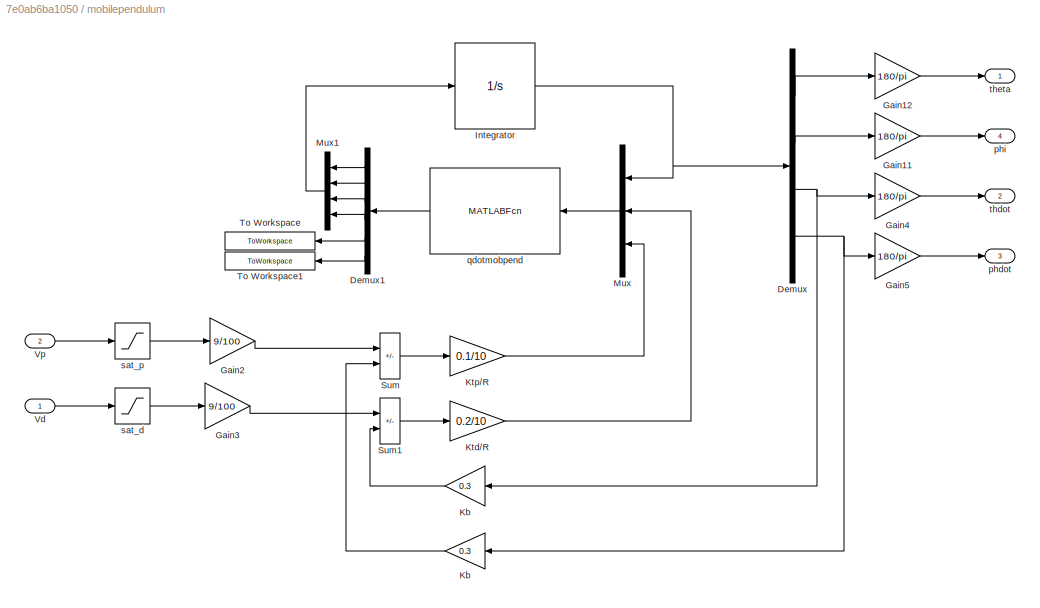
BLOCK [SubSystem] mobilependulum 
  Ports = [2, 4]
  RequestExecContextInheritance = off
BLOCK [Demux] mobilependulum /Demux
  Ports = [1, 4]
BLOCK [Demux] mobilependulum /Demux1
  Outputs = 6
  Ports = [1, 6]
BLOCK [Gain] mobilependulum /Gain11
  Gain = 180/pi
BLOCK [Gain] mobilependulum /Gain12
  Gain = 180/pi
BLOCK [Gain] mobilependulum /Gain2
  Gain = 9/100
BLOCK [Gain] mobilependulum /Gain3
  Gain = 9/100
BLOCK [Gain] mobilependulum /Gain4
  Gain = 180/pi
BLOCK [Gain] mobilependulum /Gain5
  Gain = 180/pi
BLOCK [Integrator] mobilependulum /Integrator
  InitialCondition = initcond
  Ports = [1, 1]
BLOCK [Gain] mobilependulum /Kb
  Gain = 0.3
BLOCK [Gain] mobilependulum /Kb 
  Gain = 0.3
BLOCK [Gain] mobilependulum /Ktd//R 
  Gain = 0.2/10
BLOCK [Gain] mobilependulum /Ktp//R
  Gain = 0.1/10
BLOCK [Mux] mobilependulum /Mux
  DisplayOption = bar
  Inputs = 3
  Ports = [3, 1]
BLOCK [Mux] mobilependulum /Mux1
  DisplayOption = bar
  Ports = [4, 1]
BLOCK [Sum] mobilependulum /Sum
  IconShape = rectangular
  Inputs = +|-
  NameLocation = top
  Ports = [2, 1]
BLOCK [Sum] mobilependulum /Sum1
  IconShape = rectangular
  Inputs = +|-
  NameLocation = top
  Ports = [2, 1]
BLOCK [ToWorkspace] mobilependulum /To Workspace
  MaxDataPoints = inf
  Ports = [1]
  SampleTime = -1
  Save2DSignal = 2-D array (concatenate along first dimension)
  VariableName = mobpenr
BLOCK [ToWorkspace] mobilependulum /To Workspace1
  MaxDataPoints = inf
  Ports = [1]
  SampleTime = -1
  Save2DSignal = 2-D array (concatenate along first dimension)
  VariableName = mobpenl
BLOCK [Inport] mobilependulum /Vd
BLOCK [Inport] mobilependulum /Vp
  Port = 2
BLOCK [Outport] mobilependulum /phdot
  Port = 3
BLOCK [Outport] mobilependulum /phi
  Port = 4
BLOCK [MATLABFcn] mobilependulum /qdotmobpend
  MATLABFcn = qdotmobpend(u)
  Ports = [1, 1]
BLOCK [Saturate] mobilependulum /sat_d
  LowerLimit = -100
  UpperLimit = 100
BLOCK [Saturate] mobilependulum /sat_p 
  LowerLimit = -100
  UpperLimit = 100
BLOCK [Outport] mobilependulum /thdot
  Port = 2
BLOCK [Outport] mobilependulum /theta
BLOCK [Scope] motor input voltages (%) 
  Floating = off
  NumInputPorts = 2
  Ports = [2]
  ScopeSpecificationString = Simulink.scopes.TimeScopeBlockCfg('CurrentConfiguration', extmgr.ConfigurationSet(extmgr.Configuration('Core','General UI',true),extmgr.Configuration('Core','Source UI',true),extmgr.Configuration('Sources','WiredSimulink',true,'DataLoggingVariableName','ScopeData2'),extmgr.Configuration('Visuals','Time Domain',true,'SerializedDisplays',{struct('MinYLimReal','-125.00000','MaxYLimReal','125.00000','...<+1812ch>
BLOCK [Saturate] sat_d
  LowerLimit = -100
  UpperLimit = 100
BLOCK [Saturate] sat_p 
  LowerLimit = -100
  UpperLimit = 100
BLOCK [Constant] set to 0 in order to generate triangle (instead of square)  wave reference for the drive wheel angle
  Value = 0
BLOCK [Constant] set to 0 to generate initial condition response data
ANNOTATION (root): ELEN90055 Workshop 4: Simulation model of an actuated pendulum on a mobile platform prepared by M.Cantoni (<email>); created 2020-10-06 and updated 2020-10-10; requires qdotmobpend.m; run WS4_SIMmodel_param.m to initialize; run pend_plot.m for animation of simulated data
ANNOTATION (root): nonlinear model of pendulum dynamics for initial condition response matching
LINE     :1 -> (rad and rad//s):1
NET    :1 -> Gain1:1, Switch3:3
LINE  :1 -> Switch2:3
NET Demux:1 -> Phi (rad) Pendulum Angle:1, Trigonometric Function:1
NET Demux:2 -> Gain:1, Mux:1
LINE Drive Motor Controller:1 -> sat_d:1
LINE Gain1:1 -> Sum2:3
LINE Gain2 :1 -> Sum2:2
LINE Gain3:1 -> Phi (rad) Pendulum Angle:2
LINE Gain:1 -> Sum2:1
LINE Integrator1:1 -> Demux:1
LINE Integrator:1 -> Switch:3
LINE Mux:1 -> Integrator1:1
LINE Pendulum Motor Controller:1 -> sat_p :1
LINE PhiRef:1 -> Sum1:1
NET Product:1 -> Integrator:1, Switch:1
NET Size of ramp reference (deg//s):1 -> Display1:1, Switch1:3
NET Size of step reference (deg):1 -> Display2:1, Switch1:1
LINE Square Wave:1 -> Product:1
LINE Sum1:1 -> Pendulum Motor Controller:1
LINE Sum2:1 -> Mux:2
LINE Sum:1 -> Drive Motor Controller:1
LINE Switch1:1 -> Product:2
LINE Switch2:1 -> mobilependulum :1
LINE Switch3:1 -> mobilependulum :2
NET Switch:1 -> Scope:1, Sum:2
LINE Trigonometric Function:1 -> Gain2 :1
LINE mobilependulum /Demux1:1 -> mobilependulum /Mux1:1
LINE mobilependulum /Demux1:2 -> mobilependulum /Mux1:2
LINE mobilependulum /Demux1:3 -> mobilependulum /Mux1:3
LINE mobilependulum /Demux1:4 -> mobilependulum /Mux1:4
LINE mobilependulum /Demux1:5 -> mobilependulum /To Workspace:1
LINE mobilependulum /Demux1:6 -> mobilependulum /To Workspace1:1
LINE mobilependulum /Demux:1 -> mobilependulum /Gain12:1
LINE mobilependulum /Demux:2 -> mobilependulum /Gain11:1
NET mobilependulum /Demux:3 -> mobilependulum /Gain4:1, mobilependulum /Kb:1
NET mobilependulum /Demux:4 -> mobilependulum /Gain5:1, mobilependulum /Kb :1
LINE mobilependulum /Gain11:1 -> mobilependulum /phi:1
LINE mobilependulum /Gain12:1 -> mobilependulum /theta:1
LINE mobilependulum /Gain2:1 -> mobilependulum /Sum:1
LINE mobilependulum /Gain3:1 -> mobilependulum /Sum1:1
LINE mobilependulum /Gain4:1 -> mobilependulum /thdot:1
LINE mobilependulum /Gain5:1 -> mobilependulum /phdot:1
NET mobilependulum /Integrator:1 -> mobilependulum /Demux:1, mobilependulum /Mux:1
LINE mobilependulum /Kb :1 -> mobilependulum /Sum:2
LINE mobilependulum /Kb:1 -> mobilependulum /Sum1:2
LINE mobilependulum /Ktd//R :1 -> mobilependulum /Mux:2
LINE mobilependulum /Ktp//R:1 -> mobilependulum /Mux:3
LINE mobilependulum /Mux1:1 -> mobilependulum /Integrator:1
LINE mobilependulum /Mux:1 -> mobilependulum /qdotmobpend:1
LINE mobilependulum /Sum1:1 -> mobilependulum /Ktd//R :1
LINE mobilependulum /Sum:1 -> mobilependulum /Ktp//R:1
LINE mobilependulum /Vd:1 -> mobilependulum /sat_d:1
LINE mobilependulum /Vp:1 -> mobilependulum /sat_p :1
LINE mobilependulum /qdotmobpend:1 -> mobilependulum /Demux1:1
LINE mobilependulum /sat_d:1 -> mobilependulum /Gain3:1
LINE mobilependulum /sat_p :1 -> mobilependulum /Gain2:1
NET mobilependulum :1 -> Sum:1, Theta (deg) Drive Wheel Angle:1, To Workspace:1
LINE mobilependulum :2 -> ThDot (deg//s):1
LINE mobilependulum :3 -> PhDot (deg//s):1
NET mobilependulum :4 -> Gain3:1, Phi (deg) Pendulum Angle:1, Sum1:2, To Workspace1:1
NET sat_d:1 -> Switch2:1, motor input voltages (%) :1
NET sat_p :1 -> Switch3:1, motor input voltages (%) :2
NET set to 0 in order to generate triangle (instead of square)  wave reference for the drive wheel angle:1 -> Switch1:2, Switch:2
NET set to 0 to generate initial condition response data:1 -> Switch2:2, Switch3:2
note: NET lines group one-source signal fan-out (src -> all destinations, sorted); 1:1 wires keep LINE
